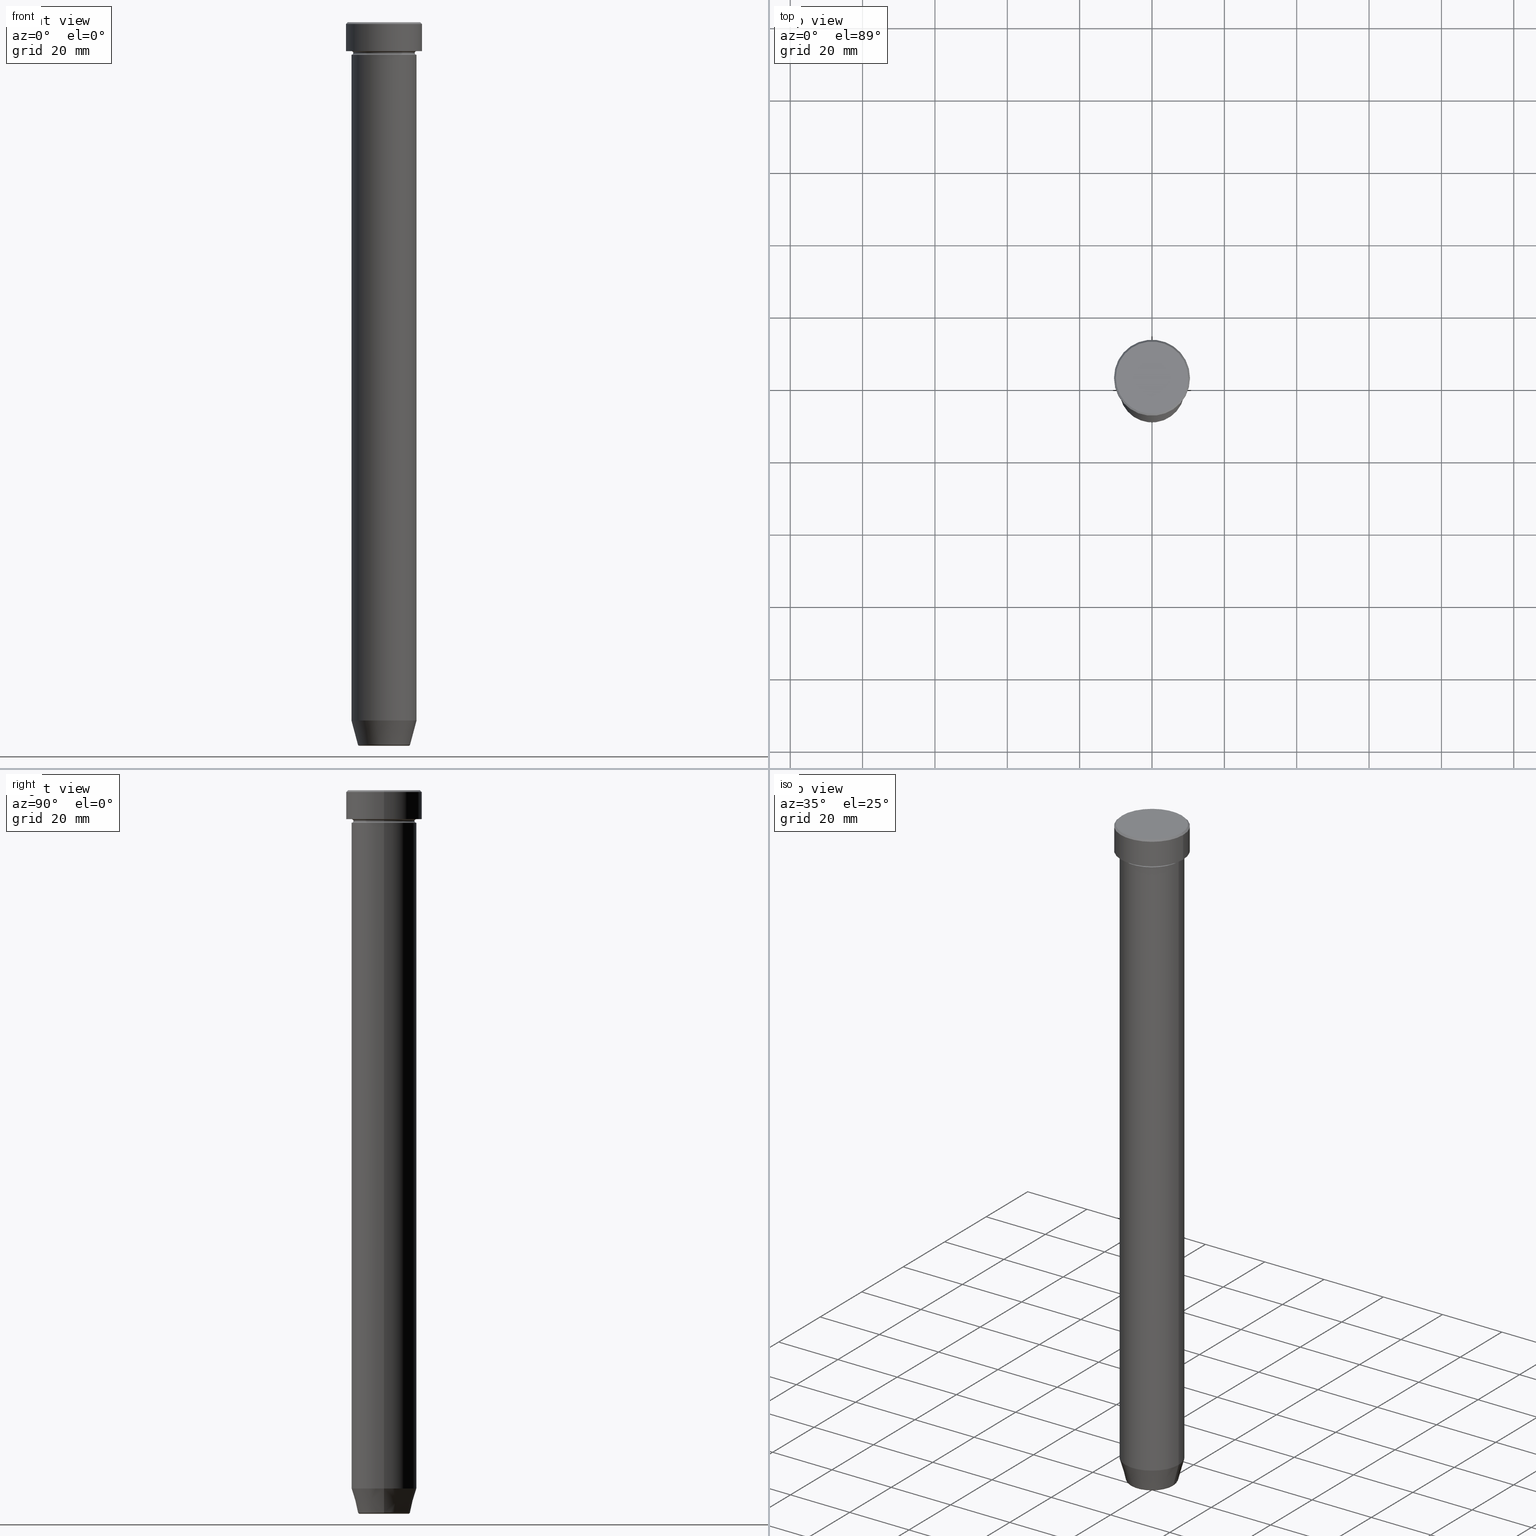
[diagram: canonical four-view strip — front | top / right | iso, engineering-drawing reading convention]
A machine part, canonical four-view strip (front | top / right | iso — engineering-drawing reading convention). The complete STEP part file that produces these views, byte-faithful:
ISO-10303-21;
HEADER;
FILE_DESCRIPTION (( 'STEP AP203' ),
    '1' );
FILE_NAME ('d1b2.STEP',
    '2024-01-02T20:56:07',
    ( '' ),
    ( '' ),
    'SwSTEP 2.0',
    'SolidWorks 2019',
    '' );
FILE_SCHEMA (( 'CONFIG_CONTROL_DESIGN' ));
ENDSEC;

DATA;
#1 = CARTESIAN_POINT ( 'NONE',  ( 9.000000000000000000, 0.000000000000000000, -8.500000000000000000 ) ) ;
#2 = CARTESIAN_POINT ( 'NONE',  ( 0.000000000000000000, 0.000000000000000000, 0.000000000000000000 ) ) ;
#3 = ADVANCED_FACE ( 'NONE', ( #277 ), #555, .T. ) ;
#4 = LOCAL_TIME ( 21, 56, 7.000000000000000000, #195 ) ;
#5 = DIRECTION ( 'NONE',  ( -0.000000000000000000, -0.000000000000000000, 1.000000000000000000 ) ) ;
#6 = CARTESIAN_POINT ( 'NONE',  ( -6.740692158992650285, 8.254967076548010394E-16, -199.4999999999999716 ) ) ;
#7 = AXIS2_PLACEMENT_3D ( 'NONE', #481, #153, #64 ) ;
#8 = ORIENTED_EDGE ( 'NONE', *, *, #507, .F. ) ;
#9 = EDGE_CURVE ( 'NONE', #312, #248, #462, .T. ) ;
#10 = CARTESIAN_POINT ( 'NONE',  ( 6.740692158992650285, 0.000000000000000000, -199.9999999999999716 ) ) ;
#11 = ORIENTED_EDGE ( 'NONE', *, *, #251, .T. ) ;
#12 = AXIS2_PLACEMENT_3D ( 'NONE', #475, #14, #404 ) ;
#13 = CIRCLE ( 'NONE', #399, 6.740692158992650285 ) ;
#14 = DIRECTION ( 'NONE',  ( -0.000000000000000000, -0.000000000000000000, 1.000000000000000000 ) ) ;
#15 = CC_DESIGN_PERSON_AND_ORGANIZATION_ASSIGNMENT ( #101, #154, ( #42 ) ) ;
#16 = FACE_OUTER_BOUND ( 'NONE', #436, .T. ) ;
#17 = ORIENTED_EDGE ( 'NONE', *, *, #145, .F. ) ;
#18 = CIRCLE ( 'NONE', #303, 9.000000000000000000 ) ;
#19 = TOROIDAL_SURFACE ( 'NONE', #220, 9.000000000000000000, 0.5000000000000000000 ) ;
#20 = LINE ( 'NONE', #390, #434 ) ;
#21 = DIRECTION ( 'NONE',  ( 1.000000000000000000, 0.000000000000000000, 0.000000000000000000 ) ) ;
#22 = DIRECTION ( 'NONE',  ( 1.000000000000000000, 0.000000000000000000, 0.000000000000000000 ) ) ;
#23 = AXIS2_PLACEMENT_3D ( 'NONE', #6, #205, #479 ) ;
#24 = EDGE_CURVE ( 'NONE', #147, #250, #282, .T. ) ;
#25 = CARTESIAN_POINT ( 'NONE',  ( 0.000000000000000000, 0.000000000000000000, -8.500000000000000000 ) ) ;
#26 = DIRECTION ( 'NONE',  ( -0.000000000000000000, -0.000000000000000000, 1.000000000000000000 ) ) ;
#27 = AXIS2_PLACEMENT_3D ( 'NONE', #25, #589, #315 ) ;
#28 = CIRCLE ( 'NONE', #193, 0.5000000000000004441 ) ;
#29 = CC_DESIGN_DATE_AND_TIME_ASSIGNMENT ( #128, #431, ( #69 ) ) ;
#30 = ORIENTED_EDGE ( 'NONE', *, *, #299, .T. ) ;
#31 = CIRCLE ( 'NONE', #368, 10.50000000000000000 ) ;
#32 = CARTESIAN_POINT ( 'NONE',  ( 0.000000000000000000, 0.000000000000000000, 0.000000000000000000 ) ) ;
#33 = DIRECTION ( 'NONE',  ( -1.000000000000000000, -1.224646799147353454E-16, 0.000000000000000000 ) ) ;
#34 = DIRECTION ( 'NONE',  ( 1.000000000000000000, 0.000000000000000000, 0.000000000000000000 ) ) ;
#35 = CARTESIAN_POINT ( 'NONE',  ( 9.000000000000000000, 0.000000000000000000, -22.00000000000000000 ) ) ;
#36 = VERTEX_POINT ( 'NONE', #35 ) ;
#37 = ADVANCED_FACE ( 'NONE', ( #235 ), #330, .T. ) ;
#38 = DIRECTION ( 'NONE',  ( 1.000000000000000000, 0.000000000000000000, 0.000000000000000000 ) ) ;
#39 = EDGE_LOOP ( 'NONE', ( #45, #553, #73, #196 ) ) ;
#40 = PERSON_AND_ORGANIZATION_ROLE ( 'creator' ) ;
#41 = AXIS2_PLACEMENT_3D ( 'NONE', #454, #232, #375 ) ;
#42 = PRODUCT_DEFINITION_FORMATION_WITH_SPECIFIED_SOURCE ( 'LIBOVOLN�', '', #102, .NOT_KNOWN. ) ;
#43 = CALENDAR_DATE ( 2024, 2, 1 ) ;
#44 = EDGE_CURVE ( 'NONE', #395, #147, #510, .T. ) ;
#45 = ORIENTED_EDGE ( 'NONE', *, *, #170, .T. ) ;
#46 = DIRECTION ( 'NONE',  ( 1.000000000000000000, 0.000000000000000000, 0.000000000000000000 ) ) ;
#47 = FACE_OUTER_BOUND ( 'NONE', #127, .T. ) ;
#48 = PERSON_AND_ORGANIZATION_ROLE ( 'classification_officer' ) ;
#49 = DIRECTION ( 'NONE',  ( 0.000000000000000000, 0.000000000000000000, -1.000000000000000000 ) ) ;
#50 = CIRCLE ( 'NONE', #438, 8.499999999999998224 ) ;
#51 = ORIENTED_EDGE ( 'NONE', *, *, #349, .F. ) ;
#52 = CARTESIAN_POINT ( 'NONE',  ( 10.50000000000000000, 0.000000000000000000, -0.5000000000000023315 ) ) ;
#53 = CARTESIAN_POINT ( 'NONE',  ( 0.000000000000000000, 0.000000000000000000, -192.9999999999999432 ) ) ;
#54 = EDGE_LOOP ( 'NONE', ( #65, #586, #297, #365 ) ) ;
#55 = CIRCLE ( 'NONE', #204, 9.000000000000000000 ) ;
#56 = TOROIDAL_SURFACE ( 'NONE', #98, 9.000000000000000000, 0.5000000000000000000 ) ;
#57 = CC_DESIGN_PERSON_AND_ORGANIZATION_ASSIGNMENT ( #433, #185, ( #42 ) ) ;
#58 = FACE_OUTER_BOUND ( 'NONE', #88, .T. ) ;
#59 = UNCERTAINTY_MEASURE_WITH_UNIT (LENGTH_MEASURE( 1.000000000000000082E-05 ), #526, 'distance_accuracy_value', 'NONE');
#60 = DIRECTION ( 'NONE',  ( 0.000000000000000000, 0.000000000000000000, -1.000000000000000000 ) ) ;
#61 = ORIENTED_EDGE ( 'NONE', *, *, #382, .T. ) ;
#62 = CARTESIAN_POINT ( 'NONE',  ( 0.000000000000000000, 0.000000000000000000, -199.9999999999999716 ) ) ;
#63 = ADVANCED_FACE ( 'NONE', ( #58 ), #149, .T. ) ;
#64 = DIRECTION ( 'NONE',  ( 1.000000000000000000, 0.000000000000000000, 0.000000000000000000 ) ) ;
#65 = ORIENTED_EDGE ( 'NONE', *, *, #343, .F. ) ;
#66 = CARTESIAN_POINT ( 'NONE',  ( -10.50000000000000000, 1.285879139104720831E-15, 0.000000000000000000 ) ) ;
#67 = CARTESIAN_POINT ( 'NONE',  ( 0.000000000000000000, 0.000000000000000000, -8.000000000000000000 ) ) ;
#68 = ORIENTED_EDGE ( 'NONE', *, *, #384, .F. ) ;
#69 = PRODUCT_DEFINITION ( 'NEZN�M�', '', #42, #527 ) ;
#70 = CIRCLE ( 'NONE', #12, 9.000000000000000000 ) ;
#71 = PERSON_AND_ORGANIZATION ( #353, #484 ) ;
#72 = ADVANCED_FACE ( 'NONE', ( #113 ), #258, .T. ) ;
#73 = ORIENTED_EDGE ( 'NONE', *, *, #115, .F. ) ;
#74 = ORIENTED_EDGE ( 'NONE', *, *, #507, .T. ) ;
#75 = CIRCLE ( 'NONE', #159, 0.5000000000000004441 ) ;
#76 = APPROVAL_PERSON_ORGANIZATION ( #583, #495, #221 ) ;
#77 = ORIENTED_EDGE ( 'NONE', *, *, #343, .T. ) ;
#78 = ORIENTED_EDGE ( 'NONE', *, *, #499, .F. ) ;
#79 = DIRECTION ( 'NONE',  ( -0.000000000000000000, -0.000000000000000000, 1.000000000000000000 ) ) ;
#80 = CONICAL_SURFACE ( 'NONE', #574, 7.124355652982127474, 0.2617993877991499629 ) ;
#81 = DIRECTION ( 'NONE',  ( -1.000000000000000000, 0.000000000000000000, 0.000000000000000000 ) ) ;
#82 = FACE_OUTER_BOUND ( 'NONE', #273, .T. ) ;
#83 = EDGE_LOOP ( 'NONE', ( #398, #298, #190, #559 ) ) ;
#84 = ADVANCED_FACE ( 'NONE', ( #577 ), #580, .T. ) ;
#85 = CARTESIAN_POINT ( 'NONE',  ( 9.000000000000000000, 0.000000000000000000, -22.00000000000000000 ) ) ;
#86 = ORIENTED_EDGE ( 'NONE', *, *, #524, .F. ) ;
#87 = CARTESIAN_POINT ( 'NONE',  ( 0.000000000000000000, 0.000000000000000000, -199.9999999999999716 ) ) ;
#88 = EDGE_LOOP ( 'NONE', ( #216, #238, #97, #295 ) ) ;
#89 = CLOSED_SHELL ( 'NONE', ( #37, #474, #138, #207, #477, #167, #72, #3, #486, #538, #566, #290, #223 ) ) ;
#90 = CC_DESIGN_PERSON_AND_ORGANIZATION_ASSIGNMENT ( #502, #48, ( #213 ) ) ;
#91 = LINE ( 'NONE', #514, #582 ) ;
#92 = PERSON_AND_ORGANIZATION ( #353, #484 ) ;
#93 = VERTEX_POINT ( 'NONE', #10 ) ;
#94 = DIRECTION ( 'NONE',  ( -0.000000000000000000, -0.000000000000000000, 1.000000000000000000 ) ) ;
#95 = DIRECTION ( 'NONE',  ( 0.000000000000000000, 0.000000000000000000, -1.000000000000000000 ) ) ;
#96 = CIRCLE ( 'NONE', #212, 8.499999999999998224 ) ;
#97 = ORIENTED_EDGE ( 'NONE', *, *, #384, .T. ) ;
#98 = AXIS2_PLACEMENT_3D ( 'NONE', #501, #556, #150 ) ;
#99 = EDGE_LOOP ( 'NONE', ( #144, #224, #444, #506 ) ) ;
#100 = PLANE ( 'NONE',  #575 ) ;
#101 = PERSON_AND_ORGANIZATION ( #353, #484 ) ;
#102 = PRODUCT ( 'd1b2', 'd1b2', '', ( #533 ) ) ;
#103 = DIRECTION ( 'NONE',  ( -1.000000000000000000, 0.000000000000000000, 0.000000000000000000 ) ) ;
#104 = DIRECTION ( 'NONE',  ( -0.000000000000000000, -0.000000000000000000, 1.000000000000000000 ) ) ;
#105 = ORIENTED_EDGE ( 'NONE', *, *, #311, .T. ) ;
#106 = EDGE_CURVE ( 'NONE', #494, #452, #50, .T. ) ;
#107 = DIRECTION ( 'NONE',  ( 0.000000000000000000, 0.000000000000000000, -1.000000000000000000 ) ) ;
#108 = VECTOR ( 'NONE', #337, 1000.000000000000000 ) ;
#109 = LOCAL_TIME ( 21, 56, 7.000000000000000000, #401 ) ;
#110 = EDGE_CURVE ( 'NONE', #147, #324, #308, .T. ) ;
#111 = DIRECTION ( 'NONE',  ( -0.000000000000000000, -0.000000000000000000, 1.000000000000000000 ) ) ;
#112 = MANIFOLD_SOLID_BREP ( 'Zaoblit4', #125 ) ;
#113 = FACE_OUTER_BOUND ( 'NONE', #269, .T. ) ;
#114 = CARTESIAN_POINT ( 'NONE',  ( 0.000000000000000000, 0.000000000000000000, 0.000000000000000000 ) ) ;
#115 = EDGE_CURVE ( 'NONE', #338, #233, #18, .T. ) ;
#116 = ORIENTED_EDGE ( 'NONE', *, *, #563, .F. ) ;
#117 = CIRCLE ( 'NONE', #358, 9.000000000000000000 ) ;
#118 = EDGE_CURVE ( 'NONE', #520, #250, #309, .T. ) ;
#119 = CC_DESIGN_SECURITY_CLASSIFICATION ( #213, ( #42 ) ) ;
#120 = MANIFOLD_SOLID_BREP ( 'Zkosen�1', #89 ) ;
#121 = APPLICATION_CONTEXT ( 'configuration controlled 3d designs of mechanical parts and assemblies' ) ;
#122 = DIRECTION ( 'NONE',  ( -0.000000000000000000, -0.000000000000000000, 1.000000000000000000 ) ) ;
#123 = DIRECTION ( 'NONE',  ( 1.000000000000000000, 0.000000000000000000, 0.000000000000000000 ) ) ;
#124 = ORIENTED_EDGE ( 'NONE', *, *, #328, .T. ) ;
#125 = CLOSED_SHELL ( 'NONE', ( #84, #437, #519, #178, #264, #244, #535, #63 ) ) ;
#126 = DIRECTION ( 'NONE',  ( 1.000000000000000000, 0.000000000000000000, 0.000000000000000000 ) ) ;
#127 = EDGE_LOOP ( 'NONE', ( #320, #226, #396, #180 ) ) ;
#128 = DATE_AND_TIME ( #542, #271 ) ;
#129 = AXIS2_PLACEMENT_3D ( 'NONE', #32, #592, #181 ) ;
#130 = APPROVAL_PERSON_ORGANIZATION ( #92, #597, #199 ) ;
#131 = DIRECTION ( 'NONE',  ( 0.000000000000000000, 0.000000000000000000, -1.000000000000000000 ) ) ;
#132 = EDGE_LOOP ( 'NONE', ( #511, #256, #174, #8 ) ) ;
#133 = DIRECTION ( 'NONE',  ( 1.000000000000000000, 0.000000000000000000, 0.000000000000000000 ) ) ;
#134 = CARTESIAN_POINT ( 'NONE',  ( -9.000000000000000000, 1.102182119232617714E-15, -22.00000000000000000 ) ) ;
#135 = ORIENTED_EDGE ( 'NONE', *, *, #118, .F. ) ;
#136 = CARTESIAN_POINT ( 'NONE',  ( 0.000000000000000000, 0.000000000000000000, -8.000000000000000000 ) ) ;
#137 = DIRECTION ( 'NONE',  ( 0.000000000000000000, 0.000000000000000000, -1.000000000000000000 ) ) ;
#138 = ADVANCED_FACE ( 'NONE', ( #169 ), #422, .F. ) ;
#139 = DIRECTION ( 'NONE',  ( 1.000000000000000000, 0.000000000000000000, 0.000000000000000000 ) ) ;
#140 = CARTESIAN_POINT ( 'NONE',  ( 0.000000000000000000, 0.000000000000000000, -22.00000000000000000 ) ) ;
#141 = CARTESIAN_POINT ( 'NONE',  ( 0.000000000000000000, 0.000000000000000000, -0.5000000000000023315 ) ) ;
#142 = VECTOR ( 'NONE', #245, 1000.000000000000000 ) ;
#143 = DIRECTION ( 'NONE',  ( -0.000000000000000000, -0.000000000000000000, 1.000000000000000000 ) ) ;
#144 = ORIENTED_EDGE ( 'NONE', *, *, #24, .F. ) ;
#145 = EDGE_CURVE ( 'NONE', #392, #599, #31, .T. ) ;
#146 = DIRECTION ( 'NONE',  ( 0.000000000000000000, -1.000000000000000000, 0.000000000000000000 ) ) ;
#147 = VERTEX_POINT ( 'NONE', #579 ) ;
#148 = DIRECTION ( 'NONE',  ( -0.000000000000000000, -0.000000000000000000, 1.000000000000000000 ) ) ;
#149 = TOROIDAL_SURFACE ( 'NONE', #7, 6.740692158992650285, 0.5000000000000000000 ) ;
#150 = DIRECTION ( 'NONE',  ( -1.000000000000000000, 0.000000000000000000, 0.000000000000000000 ) ) ;
#151 = CALENDAR_DATE ( 2024, 2, 1 ) ;
#152 = CARTESIAN_POINT ( 'NONE',  ( -9.000000000000000000, 1.102182119232617714E-15, 0.000000000000000000 ) ) ;
#153 = DIRECTION ( 'NONE',  ( -0.000000000000000000, -0.000000000000000000, 1.000000000000000000 ) ) ;
#154 = PERSON_AND_ORGANIZATION_ROLE ( 'creator' ) ;
#155 = LINE ( 'NONE', #572, #493 ) ;
#156 = CARTESIAN_POINT ( 'NONE',  ( 9.000000000000000000, 1.102182119232617714E-15, -8.000000000000000000 ) ) ;
#157 = EDGE_CURVE ( 'NONE', #324, #147, #423, .T. ) ;
#158 = CARTESIAN_POINT ( 'NONE',  ( -10.50000000000000000, 1.285879139104720831E-15, -8.000000000000000000 ) ) ;
#159 = AXIS2_PLACEMENT_3D ( 'NONE', #385, #331, #252 ) ;
#160 = AXIS2_PLACEMENT_3D ( 'NONE', #508, #364, #459 ) ;
#161 = AXIS2_PLACEMENT_3D ( 'NONE', #184, #79, #278 ) ;
#162 = CARTESIAN_POINT ( 'NONE',  ( 0.000000000000000000, 0.000000000000000000, -22.00000000000000000 ) ) ;
#163 = DIRECTION ( 'NONE',  ( -0.000000000000000000, -0.000000000000000000, 1.000000000000000000 ) ) ;
#164 = FACE_OUTER_BOUND ( 'NONE', #531, .T. ) ;
#165 = AXIS2_PLACEMENT_3D ( 'NONE', #383, #571, #379 ) ;
#166 = AXIS2_PLACEMENT_3D ( 'NONE', #2, #509, #430 ) ;
#167 = ADVANCED_FACE ( 'NONE', ( #164 ), #355, .T. ) ;
#168 = ORIENTED_EDGE ( 'NONE', *, *, #541, .F. ) ;
#169 = FACE_OUTER_BOUND ( 'NONE', #549, .T. ) ;
#170 = EDGE_CURVE ( 'NONE', #36, #476, #55, .T. ) ;
#171 = AXIS2_PLACEMENT_3D ( 'NONE', #231, #413, #550 ) ;
#172 = DIRECTION ( 'NONE',  ( -1.000000000000000000, 0.000000000000000000, 0.000000000000000000 ) ) ;
#173 = LINE ( 'NONE', #546, #293 ) ;
#174 = ORIENTED_EDGE ( 'NONE', *, *, #558, .F. ) ;
#175 = EDGE_LOOP ( 'NONE', ( #116, #473, #74, #400 ) ) ;
#176 = CIRCLE ( 'NONE', #41, 9.000000000000000000 ) ;
#177 = AXIS2_PLACEMENT_3D ( 'NONE', #587, #539, #123 ) ;
#178 = ADVANCED_FACE ( 'NONE', ( #595 ), #412, .F. ) ;
#179 = DIRECTION ( 'NONE',  ( -0.000000000000000000, -0.000000000000000000, 1.000000000000000000 ) ) ;
#180 = ORIENTED_EDGE ( 'NONE', *, *, #182, .F. ) ;
#181 = DIRECTION ( 'NONE',  ( -1.000000000000000000, 0.000000000000000000, 0.000000000000000000 ) ) ;
#182 = EDGE_CURVE ( 'NONE', #494, #312, #241, .T. ) ;
#183 = CARTESIAN_POINT ( 'NONE',  ( 0.000000000000000000, 0.000000000000000000, -0.5000000000000023315 ) ) ;
#184 = CARTESIAN_POINT ( 'NONE',  ( 0.000000000000000000, 0.000000000000000000, 0.000000000000000000 ) ) ;
#185 = PERSON_AND_ORGANIZATION_ROLE ( 'design_supplier' ) ;
#186 = DATE_AND_TIME ( #371, #109 ) ;
#187 = DIRECTION ( 'NONE',  ( 0.000000000000000000, 0.000000000000000000, -1.000000000000000000 ) ) ;
#188 = CARTESIAN_POINT ( 'NONE',  ( 0.000000000000000000, 0.000000000000000000, 0.000000000000000000 ) ) ;
#189 = SHAPE_DEFINITION_REPRESENTATION ( #357, #197 ) ;
#190 = ORIENTED_EDGE ( 'NONE', *, *, #585, .T. ) ;
#191 = APPROVAL_DATE_TIME ( #186, #495 ) ;
#192 = TOROIDAL_SURFACE ( 'NONE', #465, 9.000000000000000000, 0.5000000000000000000 ) ;
#193 = AXIS2_PLACEMENT_3D ( 'NONE', #1, #146, #329 ) ;
#194 = CARTESIAN_POINT ( 'NONE',  ( -7.124355652982127474, 8.724819346411914255E-16, -199.9999999999999716 ) ) ;
#195 = COORDINATED_UNIVERSAL_TIME_OFFSET ( 1, 0, .AHEAD. ) ;
#196 = ORIENTED_EDGE ( 'NONE', *, *, #366, .F. ) ;
#197 = ADVANCED_BREP_SHAPE_REPRESENTATION ( 'd1b2', ( #120, #112, #242 ), #424 ) ;
#198 = CARTESIAN_POINT ( 'NONE',  ( 0.000000000000000000, 0.000000000000000000, 0.000000000000000000 ) ) ;
#199 = APPROVAL_ROLE ( '' ) ;
#200 = DIRECTION ( 'NONE',  ( -0.000000000000000000, -0.000000000000000000, 1.000000000000000000 ) ) ;
#201 = APPROVAL_STATUS ( 'not_yet_approved' ) ;
#202 = DIRECTION ( 'NONE',  ( 1.000000000000000000, 0.000000000000000000, 0.000000000000000000 ) ) ;
#203 =( NAMED_UNIT ( * ) SI_UNIT ( $, .STERADIAN. ) SOLID_ANGLE_UNIT ( ) );
#204 = AXIS2_PLACEMENT_3D ( 'NONE', #318, #497, #133 ) ;
#205 = DIRECTION ( 'NONE',  ( 1.224646799147353207E-16, 1.000000000000000000, 0.000000000000000000 ) ) ;
#206 = LINE ( 'NONE', #339, #108 ) ;
#207 = ADVANCED_FACE ( 'NONE', ( #276 ), #560, .T. ) ;
#208 = CARTESIAN_POINT ( 'NONE',  ( -9.000000000000000000, 1.102182119232617714E-15, -9.000000000000001776 ) ) ;
#209 = AXIS2_PLACEMENT_3D ( 'NONE', #136, #419, #81 ) ;
#210 = DIRECTION ( 'NONE',  ( -1.000000000000000000, 0.000000000000000000, 0.000000000000000000 ) ) ;
#211 = DIRECTION ( 'NONE',  ( -0.7071067811865450192, 0.000000000000000000, -0.7071067811865500152 ) ) ;
#212 = AXIS2_PLACEMENT_3D ( 'NONE', #512, #94, #46 ) ;
#213 = SECURITY_CLASSIFICATION ( '', '', #323 ) ;
#214 = PLANE ( 'NONE',  #478 ) ;
#215 = LINE ( 'NONE', #347, #455 ) ;
#216 = ORIENTED_EDGE ( 'NONE', *, *, #44, .F. ) ;
#217 = ORIENTED_EDGE ( 'NONE', *, *, #543, .T. ) ;
#218 = DIRECTION ( 'NONE',  ( -0.000000000000000000, -0.000000000000000000, 1.000000000000000000 ) ) ;
#219 = CIRCLE ( 'NONE', #342, 0.5000000000000004441 ) ;
#220 = AXIS2_PLACEMENT_3D ( 'NONE', #234, #179, #239 ) ;
#221 = APPROVAL_ROLE ( '' ) ;
#222 = DIRECTION ( 'NONE',  ( -0.000000000000000000, -0.000000000000000000, 1.000000000000000000 ) ) ;
#223 = ADVANCED_FACE ( 'NONE', ( #230 ), #565, .T. ) ;
#224 = ORIENTED_EDGE ( 'NONE', *, *, #110, .T. ) ;
#225 = VERTEX_POINT ( 'NONE', #85 ) ;
#226 = ORIENTED_EDGE ( 'NONE', *, *, #460, .T. ) ;
#227 = DIRECTION ( 'NONE',  ( -0.000000000000000000, -0.000000000000000000, 1.000000000000000000 ) ) ;
#228 = ORIENTED_EDGE ( 'NONE', *, *, #460, .F. ) ;
#229 = CIRCLE ( 'NONE', #410, 9.000000000000000000 ) ;
#230 = FACE_OUTER_BOUND ( 'NONE', #175, .T. ) ;
#231 = CARTESIAN_POINT ( 'NONE',  ( 0.000000000000000000, 0.000000000000000000, 0.000000000000000000 ) ) ;
#232 = DIRECTION ( 'NONE',  ( -0.000000000000000000, -0.000000000000000000, 1.000000000000000000 ) ) ;
#233 = VERTEX_POINT ( 'NONE', #208 ) ;
#234 = CARTESIAN_POINT ( 'NONE',  ( 0.000000000000000000, 0.000000000000000000, -8.500000000000000000 ) ) ;
#235 = FACE_OUTER_BOUND ( 'NONE', #132, .T. ) ;
#236 = CARTESIAN_POINT ( 'NONE',  ( -6.740692158992650285, 8.550696569392675821E-16, -199.9999999999999716 ) ) ;
#237 = COORDINATED_UNIVERSAL_TIME_OFFSET ( 1, 0, .AHEAD. ) ;
#238 = ORIENTED_EDGE ( 'NONE', *, *, #543, .F. ) ;
#239 = DIRECTION ( 'NONE',  ( 1.000000000000000000, 0.000000000000000000, 0.000000000000000000 ) ) ;
#240 = ORIENTED_EDGE ( 'NONE', *, *, #415, .T. ) ;
#241 = CIRCLE ( 'NONE', #160, 0.5000000000000004441 ) ;
#242 = AXIS2_PLACEMENT_3D ( 'NONE', #441, #346, #405 ) ;
#243 = AXIS2_PLACEMENT_3D ( 'NONE', #341, #261, #532 ) ;
#244 = ADVANCED_FACE ( 'NONE', ( #471 ), #80, .T. ) ;
#245 = DIRECTION ( 'NONE',  ( 0.7071067811865450192, 8.659560562354902043E-17, -0.7071067811865500152 ) ) ;
#246 = DIRECTION ( 'NONE',  ( -0.000000000000000000, -0.000000000000000000, 1.000000000000000000 ) ) ;
#247 = APPROVAL_ROLE ( '' ) ;
#248 = VERTEX_POINT ( 'NONE', #156 ) ;
#249 = APPROVAL_DATE_TIME ( #426, #597 ) ;
#250 = VERTEX_POINT ( 'NONE', #570 ) ;
#251 = EDGE_CURVE ( 'NONE', #250, #520, #117, .T. ) ;
#252 = DIRECTION ( 'NONE',  ( -1.000000000000000000, 1.224646799147353454E-16, 0.000000000000000000 ) ) ;
#253 = AXIS2_PLACEMENT_3D ( 'NONE', #562, #521, #260 ) ;
#254 = CARTESIAN_POINT ( 'NONE',  ( 0.000000000000000000, 1.836970198721029747E-14, -199.9999999999999716 ) ) ;
#255 = AXIS2_PLACEMENT_3D ( 'NONE', #183, #95, #294 ) ;
#256 = ORIENTED_EDGE ( 'NONE', *, *, #563, .T. ) ;
#257 = DIRECTION ( 'NONE',  ( -0.000000000000000000, -0.000000000000000000, 1.000000000000000000 ) ) ;
#258 = PLANE ( 'NONE',  #165 ) ;
#259 = EDGE_CURVE ( 'NONE', #392, #321, #206, .T. ) ;
#260 = DIRECTION ( 'NONE',  ( 1.000000000000000000, 0.000000000000000000, 0.000000000000000000 ) ) ;
#261 = DIRECTION ( 'NONE',  ( -0.000000000000000000, -0.000000000000000000, 1.000000000000000000 ) ) ;
#262 = CC_DESIGN_APPROVAL ( #403, ( #213 ) ) ;
#263 = PERSON_AND_ORGANIZATION_ROLE ( 'design_owner' ) ;
#264 = ADVANCED_FACE ( 'NONE', ( #302 ), #569, .T. ) ;
#265 = DIRECTION ( 'NONE',  ( -0.000000000000000000, -0.000000000000000000, 1.000000000000000000 ) ) ;
#266 = APPLICATION_CONTEXT ( 'configuration controlled 3d designs of mechanical parts and assemblies' ) ;
#267 = ORIENTED_EDGE ( 'NONE', *, *, #268, .F. ) ;
#268 = EDGE_CURVE ( 'NONE', #250, #594, #381, .T. ) ;
#269 = EDGE_LOOP ( 'NONE', ( #240, #306 ) ) ;
#270 = AXIS2_PLACEMENT_3D ( 'NONE', #402, #491, #172 ) ;
#271 = LOCAL_TIME ( 21, 56, 7.000000000000000000, #354 ) ;
#272 = EDGE_LOOP ( 'NONE', ( #291, #517, #380, #51 ) ) ;
#273 = EDGE_LOOP ( 'NONE', ( #408, #77, #448, #469 ) ) ;
#274 = ORIENTED_EDGE ( 'NONE', *, *, #382, .F. ) ;
#275 = VECTOR ( 'NONE', #457, 1000.000000000000114 ) ;
#276 = FACE_OUTER_BOUND ( 'NONE', #39, .T. ) ;
#277 = FACE_OUTER_BOUND ( 'NONE', #54, .T. ) ;
#278 = DIRECTION ( 'NONE',  ( 1.000000000000000000, 0.000000000000000000, 0.000000000000000000 ) ) ;
#279 = AXIS2_PLACEMENT_3D ( 'NONE', #87, #561, #288 ) ;
#280 = AXIS2_PLACEMENT_3D ( 'NONE', #67, #104, #443 ) ;
#281 = FACE_OUTER_BOUND ( 'NONE', #83, .T. ) ;
#282 = LINE ( 'NONE', #194, #275 ) ;
#283 = FACE_OUTER_BOUND ( 'NONE', #352, .T. ) ;
#284 = COORDINATED_UNIVERSAL_TIME_OFFSET ( 1, 0, .AHEAD. ) ;
#285 = ORIENTED_EDGE ( 'NONE', *, *, #24, .T. ) ;
#286 = CARTESIAN_POINT ( 'NONE',  ( 6.740692158992650285, 0.000000000000000000, -199.4999999999999716 ) ) ;
#287 = CC_DESIGN_PERSON_AND_ORGANIZATION_ASSIGNMENT ( #71, #263, ( #102 ) ) ;
#288 = DIRECTION ( 'NONE',  ( 1.000000000000000000, 0.000000000000000000, 0.000000000000000000 ) ) ;
#289 = DIRECTION ( 'NONE',  ( 1.000000000000000000, 0.000000000000000000, 0.000000000000000000 ) ) ;
#290 = ADVANCED_FACE ( 'NONE', ( #16 ), #192, .F. ) ;
#291 = ORIENTED_EDGE ( 'NONE', *, *, #118, .T. ) ;
#292 = VECTOR ( 'NONE', #122, 1000.000000000000000 ) ;
#293 = VECTOR ( 'NONE', #451, 1000.000000000000000 ) ;
#294 = DIRECTION ( 'NONE',  ( 1.000000000000000000, 0.000000000000000000, 0.000000000000000000 ) ) ;
#295 = ORIENTED_EDGE ( 'NONE', *, *, #110, .F. ) ;
#296 = CARTESIAN_POINT ( 'NONE',  ( 9.000000000000000000, 1.102182119232617714E-15, -8.500000000000000000 ) ) ;
#297 = ORIENTED_EDGE ( 'NONE', *, *, #259, .T. ) ;
#298 = ORIENTED_EDGE ( 'NONE', *, *, #311, .F. ) ;
#299 = EDGE_CURVE ( 'NONE', #494, #233, #75, .T. ) ;
#300 = CARTESIAN_POINT ( 'NONE',  ( 7.223655072137179722, 0.000000000000000000, -199.6294095225512706 ) ) ;
#301 = FACE_OUTER_BOUND ( 'NONE', #470, .T. ) ;
#302 = FACE_OUTER_BOUND ( 'NONE', #467, .T. ) ;
#303 = AXIS2_PLACEMENT_3D ( 'NONE', #564, #522, #335 ) ;
#304 = DIRECTION ( 'NONE',  ( -0.000000000000000000, -0.000000000000000000, 1.000000000000000000 ) ) ;
#305 = AXIS2_PLACEMENT_3D ( 'NONE', #114, #304, #389 ) ;
#306 = ORIENTED_EDGE ( 'NONE', *, *, #447, .T. ) ;
#307 = CARTESIAN_POINT ( 'NONE',  ( 0.000000000000000000, 0.000000000000000000, -8.500000000000000000 ) ) ;
#308 = CIRCLE ( 'NONE', #340, 7.223655072137178834 ) ;
#309 = CIRCLE ( 'NONE', #397, 9.000000000000000000 ) ;
#310 = CIRCLE ( 'NONE', #547, 6.740692158992650285 ) ;
#311 = EDGE_CURVE ( 'NONE', #452, #494, #96, .T. ) ;
#312 = VERTEX_POINT ( 'NONE', #427 ) ;
#313 = ORIENTED_EDGE ( 'NONE', *, *, #325, .T. ) ;
#314 = DIRECTION ( 'NONE',  ( -0.000000000000000000, -0.000000000000000000, 1.000000000000000000 ) ) ;
#315 = DIRECTION ( 'NONE',  ( 1.000000000000000000, 0.000000000000000000, 0.000000000000000000 ) ) ;
#316 = EDGE_LOOP ( 'NONE', ( #496, #285, #135, #487 ) ) ;
#317 = AXIS2_PLACEMENT_3D ( 'NONE', #590, #227, #139 ) ;
#318 = CARTESIAN_POINT ( 'NONE',  ( 0.000000000000000000, 0.000000000000000000, -22.00000000000000000 ) ) ;
#319 = CYLINDRICAL_SURFACE ( 'NONE', #177, 9.000000000000000000 ) ;
#320 = ORIENTED_EDGE ( 'NONE', *, *, #106, .T. ) ;
#321 = VERTEX_POINT ( 'NONE', #52 ) ;
#322 = DIRECTION ( 'NONE',  ( -1.224646799147353207E-16, 1.000000000000000000, 0.000000000000000000 ) ) ;
#323 = SECURITY_CLASSIFICATION_LEVEL ( 'unclassified' ) ;
#324 = VERTEX_POINT ( 'NONE', #300 ) ;
#325 = EDGE_CURVE ( 'NONE', #233, #338, #70, .T. ) ;
#326 = DIRECTION ( 'NONE',  ( -1.000000000000000000, 0.000000000000000000, -0.000000000000000000 ) ) ;
#327 = ORIENTED_EDGE ( 'NONE', *, *, #157, .F. ) ;
#328 = EDGE_CURVE ( 'NONE', #225, #594, #229, .T. ) ;
#329 = DIRECTION ( 'NONE',  ( 0.000000000000000000, 0.000000000000000000, -1.000000000000000000 ) ) ;
#330 = CONICAL_SURFACE ( 'NONE', #407, 10.00000000000000178, 0.7853981633974447263 ) ;
#331 = DIRECTION ( 'NONE',  ( 1.224646799147353207E-16, 1.000000000000000000, 0.000000000000000000 ) ) ;
#332 = AXIS2_PLACEMENT_3D ( 'NONE', #140, #187, #326 ) ;
#333 = DIRECTION ( 'NONE',  ( 1.000000000000000000, 0.000000000000000000, 0.000000000000000000 ) ) ;
#334 =( NAMED_UNIT ( * ) PLANE_ANGLE_UNIT ( ) SI_UNIT ( $, .RADIAN. ) );
#335 = DIRECTION ( 'NONE',  ( 1.000000000000000000, 0.000000000000000000, 0.000000000000000000 ) ) ;
#336 = FACE_OUTER_BOUND ( 'NONE', #316, .T. ) ;
#337 = DIRECTION ( 'NONE',  ( -0.000000000000000000, -0.000000000000000000, 1.000000000000000000 ) ) ;
#338 = VERTEX_POINT ( 'NONE', #488 ) ;
#339 = CARTESIAN_POINT ( 'NONE',  ( 10.50000000000000000, 0.000000000000000000, 0.000000000000000000 ) ) ;
#340 = AXIS2_PLACEMENT_3D ( 'NONE', #567, #200, #374 ) ;
#341 = CARTESIAN_POINT ( 'NONE',  ( 0.000000000000000000, 0.000000000000000000, -22.00000000000000000 ) ) ;
#342 = AXIS2_PLACEMENT_3D ( 'NONE', #296, #322, #33 ) ;
#343 = EDGE_CURVE ( 'NONE', #599, #588, #344, .T. ) ;
#344 = LINE ( 'NONE', #66, #292 ) ;
#345 = DIRECTION ( 'NONE',  ( 1.000000000000000000, 0.000000000000000000, 0.000000000000000000 ) ) ;
#346 = DIRECTION ( 'NONE',  ( 0.000000000000000000, 0.000000000000000000, 1.000000000000000000 ) ) ;
#347 = CARTESIAN_POINT ( 'NONE',  ( 9.000000000000000000, 0.000000000000000000, 0.000000000000000000 ) ) ;
#348 = CIRCLE ( 'NONE', #166, 10.00000000000000178 ) ;
#349 = EDGE_CURVE ( 'NONE', #520, #225, #20, .T. ) ;
#350 = APPROVAL_STATUS ( 'not_yet_approved' ) ;
#351 = DIRECTION ( 'NONE',  ( 1.000000000000000000, 0.000000000000000000, 0.000000000000000000 ) ) ;
#352 = EDGE_LOOP ( 'NONE', ( #17, #86 ) ) ;
#353 = PERSON ( 'NEUR�EN�', 'NEUR�EN�', 'NEUR�EN�', ('NEUR�EN�'), ('NEUR�EN�'), ('NEUR�EN�') ) ;
#354 = COORDINATED_UNIVERSAL_TIME_OFFSET ( 1, 0, .AHEAD. ) ;
#355 = PLANE ( 'NONE',  #376 ) ;
#356 = ORIENTED_EDGE ( 'NONE', *, *, #394, .F. ) ;
#357 = PRODUCT_DEFINITION_SHAPE ( 'NONE', 'NONE',  #69 ) ;
#358 = AXIS2_PLACEMENT_3D ( 'NONE', #525, #5, #202 ) ;
#359 = AXIS2_PLACEMENT_3D ( 'NONE', #141, #428, #418 ) ;
#360 = LINE ( 'NONE', #500, #142 ) ;
#361 = ORIENTED_EDGE ( 'NONE', *, *, #170, .F. ) ;
#362 = CARTESIAN_POINT ( 'NONE',  ( 10.00000000000000178, 1.255262969126037241E-15, 0.000000000000000000 ) ) ;
#363 = CC_DESIGN_DATE_AND_TIME_ASSIGNMENT ( #468, #505, ( #213 ) ) ;
#364 = DIRECTION ( 'NONE',  ( -0.000000000000000000, -1.000000000000000000, -0.000000000000000000 ) ) ;
#365 = ORIENTED_EDGE ( 'NONE', *, *, #581, .T. ) ;
#366 = EDGE_CURVE ( 'NONE', #36, #338, #215, .T. ) ;
#367 = ORIENTED_EDGE ( 'NONE', *, *, #9, .T. ) ;
#368 = AXIS2_PLACEMENT_3D ( 'NONE', #445, #222, #126 ) ;
#369 = CARTESIAN_POINT ( 'NONE',  ( -9.000000000000000000, 1.102182119232617714E-15, -22.00000000000000000 ) ) ;
#370 = EDGE_LOOP ( 'NONE', ( #168, #61, #450, #458 ) ) ;
#371 = CALENDAR_DATE ( 2024, 2, 1 ) ;
#372 = CARTESIAN_POINT ( 'NONE',  ( 10.50000000000000000, 0.000000000000000000, -8.000000000000000000 ) ) ;
#373 = PERSON_AND_ORGANIZATION ( #353, #484 ) ;
#374 = DIRECTION ( 'NONE',  ( -1.000000000000000000, 0.000000000000000000, 0.000000000000000000 ) ) ;
#375 = DIRECTION ( 'NONE',  ( -1.000000000000000000, 0.000000000000000000, 0.000000000000000000 ) ) ;
#376 = AXIS2_PLACEMENT_3D ( 'NONE', #545, #131, #534 ) ;
#377 = LOCAL_TIME ( 21, 56, 7.000000000000000000, #237 ) ;
#378 = APPLICATION_PROTOCOL_DEFINITION ( 'international standard', 'config_control_design', 1994, #266 ) ;
#379 = DIRECTION ( 'NONE',  ( 1.000000000000000000, 0.000000000000000000, 0.000000000000000000 ) ) ;
#380 = ORIENTED_EDGE ( 'NONE', *, *, #328, .F. ) ;
#381 = LINE ( 'NONE', #152, #446 ) ;
#382 = EDGE_CURVE ( 'NONE', #476, #36, #490, .T. ) ;
#383 = CARTESIAN_POINT ( 'NONE',  ( 0.000000000000000000, 0.000000000000000000, 0.000000000000000000 ) ) ;
#384 = EDGE_CURVE ( 'NONE', #93, #324, #536, .T. ) ;
#385 = CARTESIAN_POINT ( 'NONE',  ( -9.000000000000000000, 1.102182119232617714E-15, -8.500000000000000000 ) ) ;
#386 = CIRCLE ( 'NONE', #515, 10.00000000000000178 ) ;
#387 = CIRCLE ( 'NONE', #243, 9.000000000000000000 ) ;
#388 = CARTESIAN_POINT ( 'NONE',  ( 0.000000000000000000, 0.000000000000000000, -199.4999999999999716 ) ) ;
#389 = DIRECTION ( 'NONE',  ( 1.000000000000000000, 0.000000000000000000, 0.000000000000000000 ) ) ;
#390 = CARTESIAN_POINT ( 'NONE',  ( 9.000000000000000000, 0.000000000000000000, 0.000000000000000000 ) ) ;
#391 = CYLINDRICAL_SURFACE ( 'NONE', #305, 9.000000000000000000 ) ;
#392 = VERTEX_POINT ( 'NONE', #372 ) ;
#393 = APPLICATION_PROTOCOL_DEFINITION ( 'international standard', 'config_control_design', 1994, #121 ) ;
#394 = EDGE_CURVE ( 'NONE', #248, #312, #176, .T. ) ;
#395 = VERTEX_POINT ( 'NONE', #236 ) ;
#396 = ORIENTED_EDGE ( 'NONE', *, *, #9, .F. ) ;
#397 = AXIS2_PLACEMENT_3D ( 'NONE', #53, #265, #21 ) ;
#398 = ORIENTED_EDGE ( 'NONE', *, *, #299, .F. ) ;
#399 = AXIS2_PLACEMENT_3D ( 'NONE', #554, #513, #34 ) ;
#400 = ORIENTED_EDGE ( 'NONE', *, *, #581, .F. ) ;
#401 = COORDINATED_UNIVERSAL_TIME_OFFSET ( 1, 0, .AHEAD. ) ;
#402 = CARTESIAN_POINT ( 'NONE',  ( 0.000000000000000000, 0.000000000000000000, -199.6294095225512706 ) ) ;
#403 = APPROVAL ( #201, 'NEUR�EN�' ) ;
#404 = DIRECTION ( 'NONE',  ( 1.000000000000000000, 0.000000000000000000, 0.000000000000000000 ) ) ;
#405 = DIRECTION ( 'NONE',  ( 1.000000000000000000, 0.000000000000000000, 0.000000000000000000 ) ) ;
#406 = FACE_OUTER_BOUND ( 'NONE', #370, .T. ) ;
#407 = AXIS2_PLACEMENT_3D ( 'NONE', #188, #107, #210 ) ;
#408 = ORIENTED_EDGE ( 'NONE', *, *, #145, .T. ) ;
#409 = ORIENTED_EDGE ( 'NONE', *, *, #489, .T. ) ;
#410 = AXIS2_PLACEMENT_3D ( 'NONE', #162, #314, #22 ) ;
#411 = VERTEX_POINT ( 'NONE', #596 ) ;
#412 = PLANE ( 'NONE',  #332 ) ;
#413 = DIRECTION ( 'NONE',  ( -0.000000000000000000, -0.000000000000000000, 1.000000000000000000 ) ) ;
#414 = EDGE_LOOP ( 'NONE', ( #367, #540 ) ) ;
#415 = EDGE_CURVE ( 'NONE', #411, #480, #386, .T. ) ;
#416 = DATE_AND_TIME ( #151, #516 ) ;
#417 = PERSON_AND_ORGANIZATION ( #353, #484 ) ;
#418 = DIRECTION ( 'NONE',  ( 1.000000000000000000, 0.000000000000000000, 0.000000000000000000 ) ) ;
#419 = DIRECTION ( 'NONE',  ( -0.000000000000000000, -0.000000000000000000, 1.000000000000000000 ) ) ;
#420 = CARTESIAN_POINT ( 'NONE',  ( 8.499999999999998224, 0.000000000000000000, -8.500000000000000000 ) ) ;
#421 = APPROVAL_STATUS ( 'not_yet_approved' ) ;
#422 = TOROIDAL_SURFACE ( 'NONE', #27, 9.000000000000000000, 0.5000000000000000000 ) ;
#423 = CIRCLE ( 'NONE', #270, 7.223655072137178834 ) ;
#424 =( GEOMETRIC_REPRESENTATION_CONTEXT ( 3 ) GLOBAL_UNCERTAINTY_ASSIGNED_CONTEXT ( ( #59 ) ) GLOBAL_UNIT_ASSIGNED_CONTEXT ( ( #526, #334, #203 ) ) REPRESENTATION_CONTEXT ( 'NONE', 'WORKASPACE' ) );
#425 = DIRECTION ( 'NONE',  ( 0.000000000000000000, -1.000000000000000000, 0.000000000000000000 ) ) ;
#426 = DATE_AND_TIME ( #43, #377 ) ;
#427 = CARTESIAN_POINT ( 'NONE',  ( -9.000000000000000000, 0.000000000000000000, -8.000000000000000000 ) ) ;
#428 = DIRECTION ( 'NONE',  ( 0.000000000000000000, 0.000000000000000000, -1.000000000000000000 ) ) ;
#429 = DIRECTION ( 'NONE',  ( 1.000000000000000000, 0.000000000000000000, 0.000000000000000000 ) ) ;
#430 = DIRECTION ( 'NONE',  ( 1.000000000000000000, 0.000000000000000000, 0.000000000000000000 ) ) ;
#431 = DATE_TIME_ROLE ( 'creation_date' ) ;
#432 = DIRECTION ( 'NONE',  ( -1.000000000000000000, 0.000000000000000000, -0.000000000000000000 ) ) ;
#433 = PERSON_AND_ORGANIZATION ( #353, #484 ) ;
#434 = VECTOR ( 'NONE', #26, 1000.000000000000000 ) ;
#435 = DIRECTION ( 'NONE',  ( 0.000000000000000000, -0.000000000000000000, 1.000000000000000000 ) ) ;
#436 = EDGE_LOOP ( 'NONE', ( #228, #105, #503, #356 ) ) ;
#437 = ADVANCED_FACE ( 'NONE', ( #336 ), #591, .T. ) ;
#438 = AXIS2_PLACEMENT_3D ( 'NONE', #307, #246, #429 ) ;
#439 = CC_DESIGN_PERSON_AND_ORGANIZATION_ASSIGNMENT ( #417, #40, ( #69 ) ) ;
#440 = AXIS2_PLACEMENT_3D ( 'NONE', #286, #425, #137 ) ;
#441 = CARTESIAN_POINT ( 'NONE',  ( 0.000000000000000000, 0.000000000000000000, 0.000000000000000000 ) ) ;
#442 = CC_DESIGN_APPROVAL ( #495, ( #69 ) ) ;
#443 = DIRECTION ( 'NONE',  ( 1.000000000000000000, 0.000000000000000000, 0.000000000000000000 ) ) ;
#444 = ORIENTED_EDGE ( 'NONE', *, *, #456, .T. ) ;
#445 = CARTESIAN_POINT ( 'NONE',  ( 0.000000000000000000, 0.000000000000000000, -8.000000000000000000 ) ) ;
#446 = VECTOR ( 'NONE', #257, 1000.000000000000000 ) ;
#447 = EDGE_CURVE ( 'NONE', #480, #411, #348, .T. ) ;
#448 = ORIENTED_EDGE ( 'NONE', *, *, #558, .T. ) ;
#449 = ORIENTED_EDGE ( 'NONE', *, *, #106, .F. ) ;
#450 = ORIENTED_EDGE ( 'NONE', *, *, #366, .T. ) ;
#451 = DIRECTION ( 'NONE',  ( -0.000000000000000000, -0.000000000000000000, 1.000000000000000000 ) ) ;
#452 = VERTEX_POINT ( 'NONE', #420 ) ;
#453 = PRODUCT_RELATED_PRODUCT_CATEGORY ( 'detail', '', ( #102 ) ) ;
#454 = CARTESIAN_POINT ( 'NONE',  ( 0.000000000000000000, 0.000000000000000000, -8.000000000000000000 ) ) ;
#455 = VECTOR ( 'NONE', #218, 1000.000000000000000 ) ;
#456 = EDGE_CURVE ( 'NONE', #324, #520, #91, .T. ) ;
#457 = DIRECTION ( 'NONE',  ( -0.2588190451025212391, 3.169619151431771721E-17, 0.9659258262890680902 ) ) ;
#458 = ORIENTED_EDGE ( 'NONE', *, *, #325, .F. ) ;
#459 = DIRECTION ( 'NONE',  ( 0.000000000000000000, 0.000000000000000000, -1.000000000000000000 ) ) ;
#460 = EDGE_CURVE ( 'NONE', #452, #248, #219, .T. ) ;
#461 = DIRECTION ( 'NONE',  ( 0.2588190451025212391, 0.000000000000000000, 0.9659258262890680902 ) ) ;
#462 = CIRCLE ( 'NONE', #209, 9.000000000000000000 ) ;
#463 = CALENDAR_DATE ( 2024, 2, 1 ) ;
#464 = ORIENTED_EDGE ( 'NONE', *, *, #489, .F. ) ;
#465 = AXIS2_PLACEMENT_3D ( 'NONE', #518, #576, #103 ) ;
#466 = CIRCLE ( 'NONE', #280, 10.50000000000000000 ) ;
#467 = EDGE_LOOP ( 'NONE', ( #267, #11, #528, #464 ) ) ;
#468 = DATE_AND_TIME ( #463, #4 ) ;
#469 = ORIENTED_EDGE ( 'NONE', *, *, #259, .F. ) ;
#470 = EDGE_LOOP ( 'NONE', ( #217, #557 ) ) ;
#471 = FACE_OUTER_BOUND ( 'NONE', #99, .T. ) ;
#472 = CARTESIAN_POINT ( 'NONE',  ( 0.000000000000000000, 10.50000000000000000, -8.000000000000000000 ) ) ;
#473 = ORIENTED_EDGE ( 'NONE', *, *, #415, .F. ) ;
#474 = ADVANCED_FACE ( 'NONE', ( #47 ), #56, .F. ) ;
#475 = CARTESIAN_POINT ( 'NONE',  ( 0.000000000000000000, 0.000000000000000000, -9.000000000000001776 ) ) ;
#476 = VERTEX_POINT ( 'NONE', #369 ) ;
#477 = ADVANCED_FACE ( 'NONE', ( #82 ), #593, .T. ) ;
#478 = AXIS2_PLACEMENT_3D ( 'NONE', #254, #435, #351 ) ;
#479 = DIRECTION ( 'NONE',  ( -1.000000000000000000, 1.224646799147351482E-16, 0.000000000000000000 ) ) ;
#480 = VERTEX_POINT ( 'NONE', #362 ) ;
#481 = CARTESIAN_POINT ( 'NONE',  ( 0.000000000000000000, 0.000000000000000000, -199.4999999999999716 ) ) ;
#482 = FACE_OUTER_BOUND ( 'NONE', #272, .T. ) ;
#483 = AXIS2_PLACEMENT_3D ( 'NONE', #388, #163, #345 ) ;
#484 = ORGANIZATION ( 'NEUR�EN�', 'NEUR�EN�', '' ) ;
#485 = EDGE_LOOP ( 'NONE', ( #78, #498, #327, #68 ) ) ;
#486 = ADVANCED_FACE ( 'NONE', ( #551, #283 ), #100, .T. ) ;
#487 = ORIENTED_EDGE ( 'NONE', *, *, #456, .F. ) ;
#488 = CARTESIAN_POINT ( 'NONE',  ( 9.000000000000000000, 0.000000000000000000, -9.000000000000001776 ) ) ;
#489 = EDGE_CURVE ( 'NONE', #594, #225, #387, .T. ) ;
#490 = CIRCLE ( 'NONE', #317, 9.000000000000000000 ) ;
#491 = DIRECTION ( 'NONE',  ( -0.000000000000000000, -0.000000000000000000, 1.000000000000000000 ) ) ;
#492 = CIRCLE ( 'NONE', #255, 10.50000000000000000 ) ;
#493 = VECTOR ( 'NONE', #211, 1000.000000000000000 ) ;
#494 = VERTEX_POINT ( 'NONE', #530 ) ;
#495 = APPROVAL ( #350, 'NEUR�EN�' ) ;
#496 = ORIENTED_EDGE ( 'NONE', *, *, #157, .T. ) ;
#497 = DIRECTION ( 'NONE',  ( -0.000000000000000000, -0.000000000000000000, 1.000000000000000000 ) ) ;
#498 = ORIENTED_EDGE ( 'NONE', *, *, #44, .T. ) ;
#499 = EDGE_CURVE ( 'NONE', #395, #93, #310, .T. ) ;
#500 = CARTESIAN_POINT ( 'NONE',  ( 10.00000000000000178, 1.224646799147353454E-15, 0.000000000000000000 ) ) ;
#501 = CARTESIAN_POINT ( 'NONE',  ( 0.000000000000000000, 0.000000000000000000, -8.500000000000000000 ) ) ;
#502 = PERSON_AND_ORGANIZATION ( #353, #484 ) ;
#503 = ORIENTED_EDGE ( 'NONE', *, *, #182, .T. ) ;
#504 = CARTESIAN_POINT ( 'NONE',  ( 0.000000000000000000, 0.000000000000000000, 0.000000000000000000 ) ) ;
#505 = DATE_TIME_ROLE ( 'classification_date' ) ;
#506 = ORIENTED_EDGE ( 'NONE', *, *, #251, .F. ) ;
#507 = EDGE_CURVE ( 'NONE', #411, #588, #155, .T. ) ;
#508 = CARTESIAN_POINT ( 'NONE',  ( -9.000000000000000000, 0.000000000000000000, -8.500000000000000000 ) ) ;
#509 = DIRECTION ( 'NONE',  ( -0.000000000000000000, -0.000000000000000000, 1.000000000000000000 ) ) ;
#510 = CIRCLE ( 'NONE', #23, 0.5000000000000004441 ) ;
#511 = ORIENTED_EDGE ( 'NONE', *, *, #447, .F. ) ;
#512 = CARTESIAN_POINT ( 'NONE',  ( 0.000000000000000000, 0.000000000000000000, -8.500000000000000000 ) ) ;
#513 = DIRECTION ( 'NONE',  ( 0.000000000000000000, 0.000000000000000000, -1.000000000000000000 ) ) ;
#514 = CARTESIAN_POINT ( 'NONE',  ( 7.124355652982127474, 0.000000000000000000, -199.9999999999999716 ) ) ;
#515 = AXIS2_PLACEMENT_3D ( 'NONE', #198, #143, #38 ) ;
#516 = LOCAL_TIME ( 21, 56, 7.000000000000000000, #284 ) ;
#517 = ORIENTED_EDGE ( 'NONE', *, *, #268, .T. ) ;
#518 = CARTESIAN_POINT ( 'NONE',  ( 0.000000000000000000, 0.000000000000000000, -8.500000000000000000 ) ) ;
#519 = ADVANCED_FACE ( 'NONE', ( #482 ), #391, .T. ) ;
#520 = VERTEX_POINT ( 'NONE', #523 ) ;
#521 = DIRECTION ( 'NONE',  ( -0.000000000000000000, -0.000000000000000000, 1.000000000000000000 ) ) ;
#522 = DIRECTION ( 'NONE',  ( -0.000000000000000000, -0.000000000000000000, 1.000000000000000000 ) ) ;
#523 = CARTESIAN_POINT ( 'NONE',  ( 9.000000000000000000, 0.000000000000000000, -192.9999999999999432 ) ) ;
#524 = EDGE_CURVE ( 'NONE', #599, #392, #466, .T. ) ;
#525 = CARTESIAN_POINT ( 'NONE',  ( 0.000000000000000000, 0.000000000000000000, -192.9999999999999432 ) ) ;
#526 =( LENGTH_UNIT ( ) NAMED_UNIT ( * ) SI_UNIT ( .MILLI., .METRE. ) );
#527 = DESIGN_CONTEXT ( 'detailed design', #121, 'design' ) ;
#528 = ORIENTED_EDGE ( 'NONE', *, *, #349, .T. ) ;
#529 = APPROVAL_PERSON_ORGANIZATION ( #373, #403, #247 ) ;
#530 = CARTESIAN_POINT ( 'NONE',  ( -8.499999999999998224, 1.071565949253933927E-15, -8.500000000000000000 ) ) ;
#531 = EDGE_LOOP ( 'NONE', ( #361, #274 ) ) ;
#532 = DIRECTION ( 'NONE',  ( 1.000000000000000000, 0.000000000000000000, 0.000000000000000000 ) ) ;
#533 = MECHANICAL_CONTEXT ( 'NONE', #266, 'mechanical' ) ;
#534 = DIRECTION ( 'NONE',  ( -1.000000000000000000, 0.000000000000000000, -0.000000000000000000 ) ) ;
#535 = ADVANCED_FACE ( 'NONE', ( #301 ), #214, .F. ) ;
#536 = CIRCLE ( 'NONE', #440, 0.5000000000000004441 ) ;
#537 = EDGE_LOOP ( 'NONE', ( #124, #409 ) ) ;
#538 = ADVANCED_FACE ( 'NONE', ( #406 ), #319, .T. ) ;
#539 = DIRECTION ( 'NONE',  ( -0.000000000000000000, -0.000000000000000000, 1.000000000000000000 ) ) ;
#540 = ORIENTED_EDGE ( 'NONE', *, *, #394, .T. ) ;
#541 = EDGE_CURVE ( 'NONE', #476, #233, #173, .T. ) ;
#542 = CALENDAR_DATE ( 2024, 2, 1 ) ;
#543 = EDGE_CURVE ( 'NONE', #93, #395, #13, .T. ) ;
#544 = AXIS2_PLACEMENT_3D ( 'NONE', #504, #148, #289 ) ;
#545 = CARTESIAN_POINT ( 'NONE',  ( 0.000000000000000000, 9.000000000000000000, -22.00000000000000000 ) ) ;
#546 = CARTESIAN_POINT ( 'NONE',  ( -9.000000000000000000, 1.102182119232617714E-15, 0.000000000000000000 ) ) ;
#547 = AXIS2_PLACEMENT_3D ( 'NONE', #568, #60, #578 ) ;
#548 = CARTESIAN_POINT ( 'NONE',  ( -10.50000000000000000, 1.285879139104720831E-15, -0.5000000000000023315 ) ) ;
#549 = EDGE_LOOP ( 'NONE', ( #449, #30, #313, #573 ) ) ;
#550 = DIRECTION ( 'NONE',  ( 1.000000000000000000, 0.000000000000000000, 0.000000000000000000 ) ) ;
#551 = FACE_BOUND ( 'NONE', #414, .T. ) ;
#552 = CIRCLE ( 'NONE', #359, 10.50000000000000000 ) ;
#553 = ORIENTED_EDGE ( 'NONE', *, *, #541, .T. ) ;
#554 = CARTESIAN_POINT ( 'NONE',  ( 0.000000000000000000, 0.000000000000000000, -199.9999999999999716 ) ) ;
#555 = CYLINDRICAL_SURFACE ( 'NONE', #171, 10.50000000000000000 ) ;
#556 = DIRECTION ( 'NONE',  ( 0.000000000000000000, 0.000000000000000000, -1.000000000000000000 ) ) ;
#557 = ORIENTED_EDGE ( 'NONE', *, *, #499, .T. ) ;
#558 = EDGE_CURVE ( 'NONE', #588, #321, #492, .T. ) ;
#559 = ORIENTED_EDGE ( 'NONE', *, *, #115, .T. ) ;
#560 = CYLINDRICAL_SURFACE ( 'NONE', #544, 9.000000000000000000 ) ;
#561 = DIRECTION ( 'NONE',  ( -0.000000000000000000, -0.000000000000000000, 1.000000000000000000 ) ) ;
#562 = CARTESIAN_POINT ( 'NONE',  ( 0.000000000000000000, 0.000000000000000000, 0.000000000000000000 ) ) ;
#563 = EDGE_CURVE ( 'NONE', #480, #321, #360, .T. ) ;
#564 = CARTESIAN_POINT ( 'NONE',  ( 0.000000000000000000, 0.000000000000000000, -9.000000000000001776 ) ) ;
#565 = CONICAL_SURFACE ( 'NONE', #129, 10.00000000000000178, 0.7853981633974447263 ) ;
#566 = ADVANCED_FACE ( 'NONE', ( #281 ), #19, .F. ) ;
#567 = CARTESIAN_POINT ( 'NONE',  ( 0.000000000000000000, 0.000000000000000000, -199.6294095225512706 ) ) ;
#568 = CARTESIAN_POINT ( 'NONE',  ( 0.000000000000000000, 0.000000000000000000, -199.9999999999999716 ) ) ;
#569 = CYLINDRICAL_SURFACE ( 'NONE', #253, 9.000000000000000000 ) ;
#570 = CARTESIAN_POINT ( 'NONE',  ( -9.000000000000000000, 1.102182119232617714E-15, -192.9999999999999432 ) ) ;
#571 = DIRECTION ( 'NONE',  ( 0.000000000000000000, -0.000000000000000000, 1.000000000000000000 ) ) ;
#572 = CARTESIAN_POINT ( 'NONE',  ( -10.00000000000000178, 0.000000000000000000, 0.000000000000000000 ) ) ;
#573 = ORIENTED_EDGE ( 'NONE', *, *, #585, .F. ) ;
#574 = AXIS2_PLACEMENT_3D ( 'NONE', #62, #111, #333 ) ;
#575 = AXIS2_PLACEMENT_3D ( 'NONE', #472, #49, #432 ) ;
#576 = DIRECTION ( 'NONE',  ( 0.000000000000000000, 0.000000000000000000, -1.000000000000000000 ) ) ;
#577 = FACE_OUTER_BOUND ( 'NONE', #485, .T. ) ;
#578 = DIRECTION ( 'NONE',  ( 1.000000000000000000, 0.000000000000000000, 0.000000000000000000 ) ) ;
#579 = CARTESIAN_POINT ( 'NONE',  ( -7.223655072137179722, 9.934123627281759193E-16, -199.6294095225512706 ) ) ;
#580 = TOROIDAL_SURFACE ( 'NONE', #483, 6.740692158992650285, 0.5000000000000000000 ) ;
#581 = EDGE_CURVE ( 'NONE', #321, #588, #552, .T. ) ;
#582 = VECTOR ( 'NONE', #461, 1000.000000000000114 ) ;
#583 = PERSON_AND_ORGANIZATION ( #353, #484 ) ;
#584 = CC_DESIGN_APPROVAL ( #597, ( #42 ) ) ;
#585 = EDGE_CURVE ( 'NONE', #452, #338, #28, .T. ) ;
#586 = ORIENTED_EDGE ( 'NONE', *, *, #524, .T. ) ;
#587 = CARTESIAN_POINT ( 'NONE',  ( 0.000000000000000000, 0.000000000000000000, 0.000000000000000000 ) ) ;
#588 = VERTEX_POINT ( 'NONE', #548 ) ;
#589 = DIRECTION ( 'NONE',  ( -0.000000000000000000, -0.000000000000000000, 1.000000000000000000 ) ) ;
#590 = CARTESIAN_POINT ( 'NONE',  ( 0.000000000000000000, 0.000000000000000000, -22.00000000000000000 ) ) ;
#591 = CONICAL_SURFACE ( 'NONE', #279, 7.124355652982127474, 0.2617993877991499629 ) ;
#592 = DIRECTION ( 'NONE',  ( 0.000000000000000000, 0.000000000000000000, -1.000000000000000000 ) ) ;
#593 = CYLINDRICAL_SURFACE ( 'NONE', #161, 10.50000000000000000 ) ;
#594 = VERTEX_POINT ( 'NONE', #134 ) ;
#595 = FACE_OUTER_BOUND ( 'NONE', #537, .T. ) ;
#596 = CARTESIAN_POINT ( 'NONE',  ( -10.00000000000000178, 0.000000000000000000, 0.000000000000000000 ) ) ;
#597 = APPROVAL ( #421, 'NEUR�EN�' ) ;
#598 = APPROVAL_DATE_TIME ( #416, #403 ) ;
#599 = VERTEX_POINT ( 'NONE', #158 ) ;
ENDSEC;
END-ISO-10303-21;
